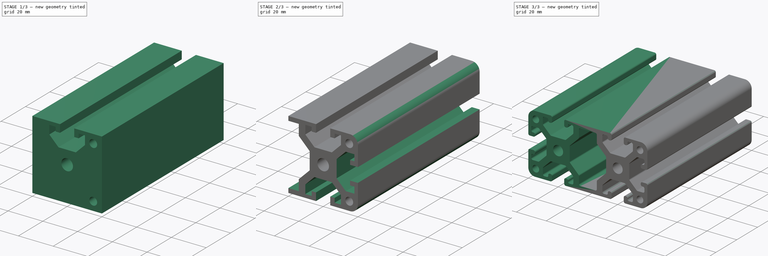
[diagram: build sequence overview — one tinted view per stage of 3, left to right]
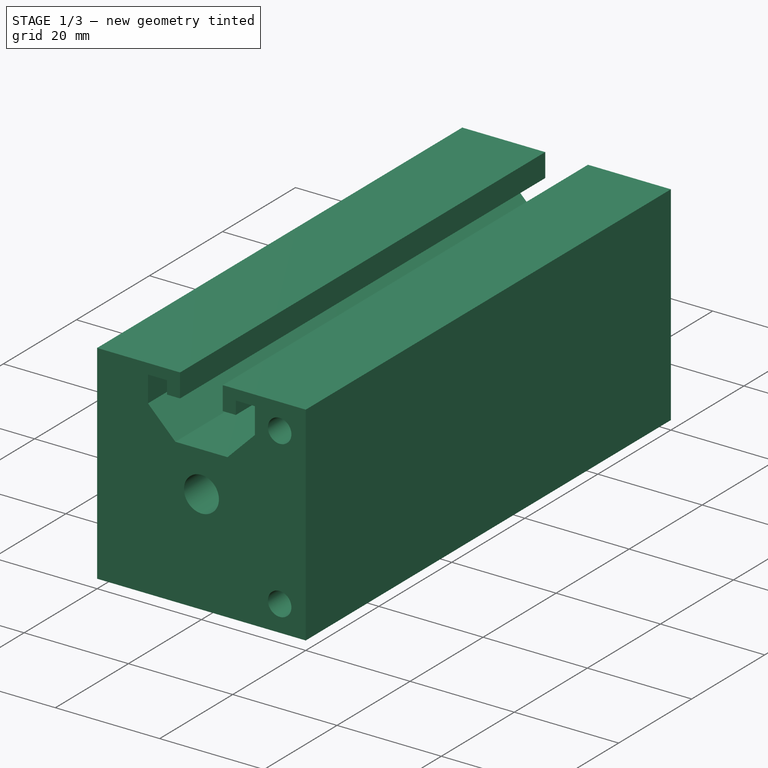
[diagram: stage 1 of 3 — iso view after this stage's code; geometry added in this stage tinted green]
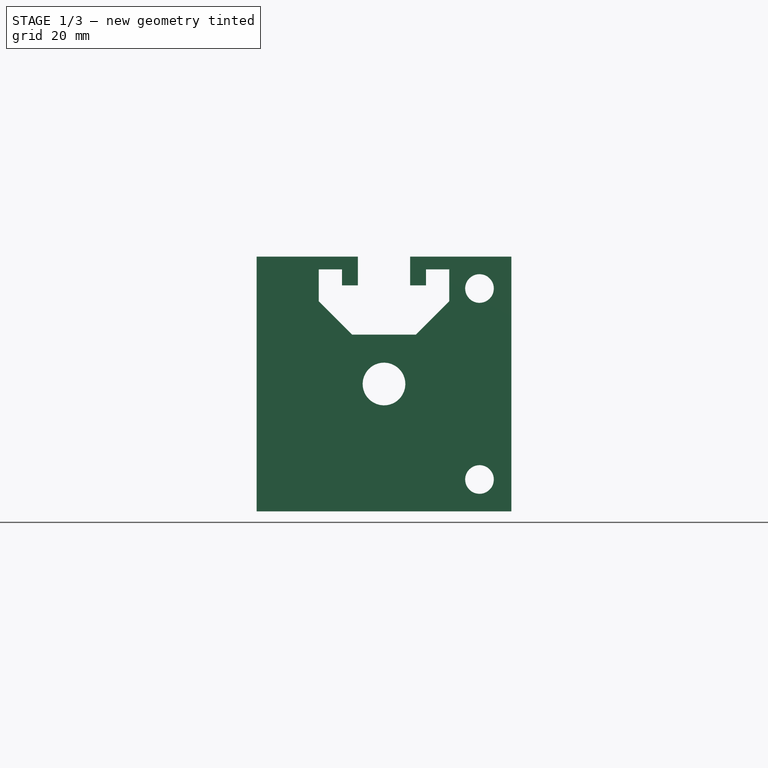
[diagram: stage 1 of 3 — front view after this stage's code; geometry added in this stage tinted green]
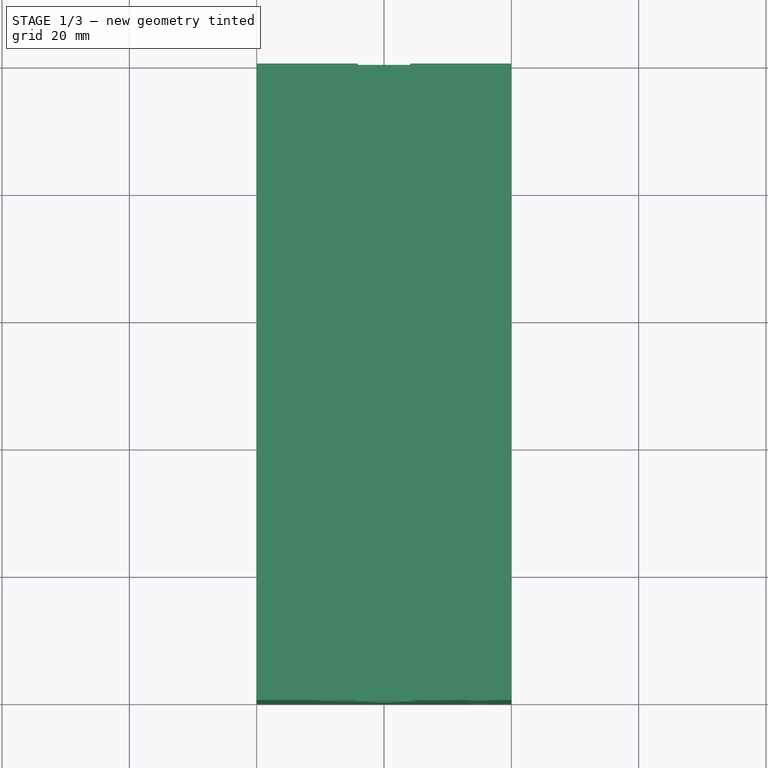
[diagram: stage 1 of 3 — top view after this stage's code; geometry added in this stage tinted green]
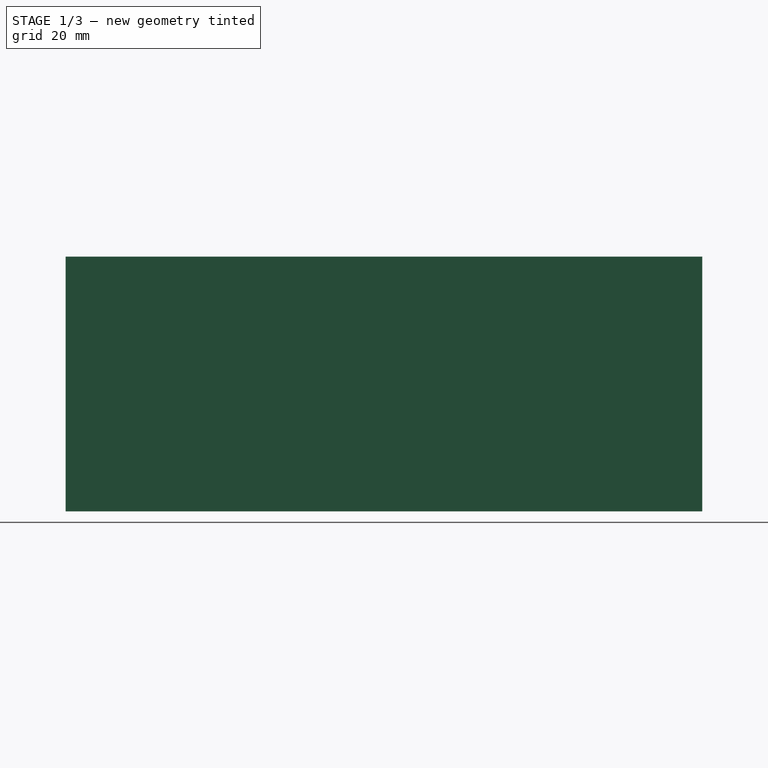
[diagram: stage 1 of 3 — right view after this stage's code; geometry added in this stage tinted green]
FCSTD DOCUMENT  (FreeCAD 1.0R39319 (Git))
Label: AlmProfile-40x80
License: All rights reserved
LicenseURL: https://en.wikipedia.org/wiki/All_rights_reserved
objects: Sketcher::SketchObject×3, PartDesign::Pocket×2, PartDesign::Fillet×2, PartDesign::Pad×1, PartDesign::Line×1, PartDesign::PolarPattern×1, PartDesign::Mirrored×1, PartDesign::Body×1
note: 27 computed .brp shape members not serialized (recipe doc carries the construction recipe); baked Part::Feature solids carry a one-line shape summary decoded from their .brp

FEATURE [Sketcher::SketchObject] Sketch
  ArcFitTolerance = 1e-06
  AttachmentSupport = -> [XZ_Plane]
  FullyConstrained = true
  MakeInternals = false
  MapMode = 5
  Placement = pos=(0,0,0) rot=(1,0,0;1.5708rad)
  sketch-geometry (10):
    g0: LineSegment StartX=0 StartY=-20 StartZ=0 EndX=40 EndY=-20 EndZ=0
    g1: LineSegment StartX=40 StartY=-20 StartZ=0 EndX=40 EndY=20 EndZ=0
    g2: LineSegment StartX=40 StartY=20 StartZ=0 EndX=0 EndY=20 EndZ=0
    g3: LineSegment [constr] StartX=0 StartY=-15 StartZ=0 EndX=35 EndY=-15 EndZ=0
    g4: LineSegment [constr] StartX=35 StartY=-15 StartZ=0 EndX=35 EndY=15 EndZ=0
    g5: LineSegment [constr] StartX=35 StartY=15 StartZ=0 EndX=0 EndY=15 EndZ=0
    g6: Circle CenterX=35 CenterY=15 CenterZ=0 NormalX=0 NormalY=0 NormalZ=1 AngleXU=0 Radius=2.25
    g7: Circle CenterX=35 CenterY=-15 CenterZ=0 NormalX=0 NormalY=0 NormalZ=1 AngleXU=0 Radius=2.25
    g8: Circle CenterX=20 CenterY=0 CenterZ=0 NormalX=0 NormalY=0 NormalZ=1 AngleXU=0 Radius=3.35
    g9: LineSegment StartX=0 StartY=-20 StartZ=0 EndX=0 EndY=20 EndZ=0
  constraints (27):
    c: Coincident(g0,g1)
    c: Coincident(g1,g2)
    c: Vertical(g1)
    c: Horizontal(g2)
    c: Coincident(g4,g5)
    c: Vertical(g4)
    c: Horizontal(g5)
    c: Coincident(g6,g4)
    c: Coincident(g7,g3)
    c: Equal(g6,g7)
    c: Diameter(g6) = 4.5
    c: Diameter(g8) = 6.7
    c: DistanceY(g4,g4) = 30
    c: DistanceX(g3,g3) = 35
    c: Symmetric(g5,g3,g-1)
    c: Coincident(g4,g3)
    c: Vertical(g2,g5)
    c: Horizontal(g3)
    c: Equal(g2,g1)
    c: Horizontal(g0)
    c: PointOnObject(g0,g-2)
    c: Symmetric(g0,g2,g-1)
    c: PointOnObject(g8,g-1)
    c: DistanceX(g-1,g8) = 20
    c: DistanceX(g0,g0) = 40
    c: Coincident(g9,g0)
    c: Coincident(g9,g2)
FEATURE [PartDesign::Pad] Pad
  Direction = (0,-1,2e-16)
  Length = 100
  Length2 = 10
  Placement = pos=(0,0,0) rot=(1,0,0;1.5708rad)
  Profile = -> Sketch
  ReferenceAxis = -> Sketch [N_Axis]
  Refine = true
  Reversed = true
  Suppressed = false
  Type = 0
FEATURE [Sketcher::SketchObject] Sketch001
  ArcFitTolerance = 1e-06
  AttachmentSupport = -> [Pad]
  ExternalGeometry = -> [Pad]
  FullyConstrained = true
  MakeInternals = false
  MapMode = 5
  Placement = pos=(0,0,0) rot=(1,0,0;1.5708rad)
  sketch-geometry (23):
    g0: LineSegment [constr] StartX=27.75 StartY=7.75 StartZ=0 EndX=27.75 EndY=-7.75 EndZ=0
    g1: LineSegment [constr] StartX=12.25 StartY=-7.75 StartZ=0 EndX=12.25 EndY=7.75 EndZ=0
    g2: LineSegment [constr] StartX=27.75 StartY=7.75 StartZ=0 EndX=12.25 EndY=7.75 EndZ=0
    g3: LineSegment [constr] StartX=27.75 StartY=7.75 StartZ=0 EndX=40 EndY=20 EndZ=0
    g4: LineSegment [constr] StartX=12.25 StartY=7.75 StartZ=0 EndX=0 EndY=20 EndZ=0
    g5: LineSegment [constr] StartX=0 StartY=-20 StartZ=0 EndX=12.25 EndY=-7.75 EndZ=0
    g6: LineSegment [constr] StartX=27.75 StartY=-7.75 StartZ=0 EndX=40 EndY=-20 EndZ=0
    g7: LineSegment [constr] StartX=12.25 StartY=-7.75 StartZ=0 EndX=27.75 EndY=-7.75 EndZ=0
    g8: LineSegment [constr] StartX=20 StartY=0 StartZ=0 EndX=20 EndY=20 EndZ=0
    g9: LineSegment StartX=15.9 StartY=20 StartZ=0 EndX=24.1 EndY=20 EndZ=0
    g10: LineSegment StartX=24.1 StartY=20 StartZ=0 EndX=24.1 EndY=15.5 EndZ=0
    g11: LineSegment StartX=24.1 StartY=15.5 StartZ=0 EndX=26.6 EndY=15.5 EndZ=0
    g12: LineSegment StartX=26.6 StartY=15.5 StartZ=0 EndX=26.6 EndY=18 EndZ=0
    g13: LineSegment StartX=26.6 StartY=18 StartZ=0 EndX=30.25 EndY=18 EndZ=0
    g14: LineSegment StartX=30.25 StartY=18 StartZ=0 EndX=30.25 EndY=13 EndZ=0
    g15: LineSegment StartX=30.25 StartY=13 StartZ=0 EndX=25 EndY=7.75 EndZ=0
    g16: LineSegment StartX=25 StartY=7.75 StartZ=0 EndX=15 EndY=7.75 EndZ=0
    g17: LineSegment StartX=15 StartY=7.75 StartZ=0 EndX=9.75 EndY=13 EndZ=0
    g18: LineSegment StartX=9.75 StartY=13 StartZ=0 EndX=9.75 EndY=18 EndZ=0
    g19: LineSegment StartX=9.75 StartY=18 StartZ=0 EndX=13.4 EndY=18 EndZ=0
    g20: LineSegment StartX=13.4 StartY=18 StartZ=0 EndX=13.4 EndY=15.5 EndZ=0
    g21: LineSegment StartX=13.4 StartY=15.5 StartZ=0 EndX=15.9 EndY=15.5 EndZ=0
    g22: LineSegment StartX=15.9 StartY=15.5 StartZ=0 EndX=15.9 EndY=20 EndZ=0
  constraints (61):
    c: Vertical(g0)
    c: Vertical(g1)
    c: Coincident(g2,g0)
    c: Coincident(g2,g1)
    c: Horizontal(g2)
    c: Coincident(g3,g0)
    c: Coincident(g3,g-5)
    c: Coincident(g4,g1)
    c: Coincident(g4,g-5)
    c: Coincident(g5,g-6)
    c: Coincident(g6,g-6)
    c: DistanceX(g2,g2) = 15.5
    c: Coincident(g7,g1)
    c: Coincident(g7,g0)
    c: Horizontal(g7)
    c: Coincident(g5,g1)
    c: Coincident(g6,g0)
    c: Equal(g0,g2)
    c: Coincident(g8,g-3)
    c: Symmetric(g-5,g-5,g8)
    c: Horizontal(g9)
    c: Coincident(g9,g10)
    c: Vertical(g10)
    c: Coincident(g10,g11)
    c: Horizontal(g11)
    c: Coincident(g11,g12)
    c: Vertical(g12)
    c: Coincident(g12,g13)
    c: Horizontal(g13)
    c: Coincident(g13,g14)
    c: Coincident(g14,g15)
    c: PointOnObject(g15,g2)
    c: Coincident(g15,g16)
    c: Coincident(g16,g17)
    c: Coincident(g17,g18)
    c: Vertical(g18)
    c: Coincident(g18,g19)
    c: Coincident(g19,g20)
    c: Coincident(g20,g21)
    c: Horizontal(g21)
    c: Coincident(g21,g22)
    c: Coincident(g22,g9)
    c: Vertical(g22)
    c: Vertical(g20)
    c: Vertical(g14)
    c: Horizontal(g19)
    c: Symmetric(g9,g9,g8)
    c: Horizontal(g10,g21)
    c: Horizontal(g12,g19)
    c: Equal(g21,g11)
    c: DistanceX(g9,g9) = 8.2
    c: DistanceX(g18,g13) = 20.5
    c: Parallel(g15,g3)
    c: Parallel(g17,g4)
    c: Symmetric(g16,g15,g8)
    c: DistanceX(g16,g16) = 10
    c: Symmetric(g0,g1,g8)
    c: Equal(g19,g13)
    c: DistanceX(g21,g21) = 2.5
    c: DistanceY(g20,g20) = 2.5
    c: DistanceY(g22,g22) = 4.5
FEATURE [PartDesign::Pocket] Pocket
  BaseFeature = -> Pad
  Direction = (0,1,-2e-16)
  Length = 5
  Length2 = 5
  Placement = pos=(0,0,0) rot=(1,0,0;1.5708rad)
  Profile = -> Sketch001
  ReferenceAxis = -> Sketch001 [N_Axis]
  Refine = true
  Suppressed = false
  Type = 1
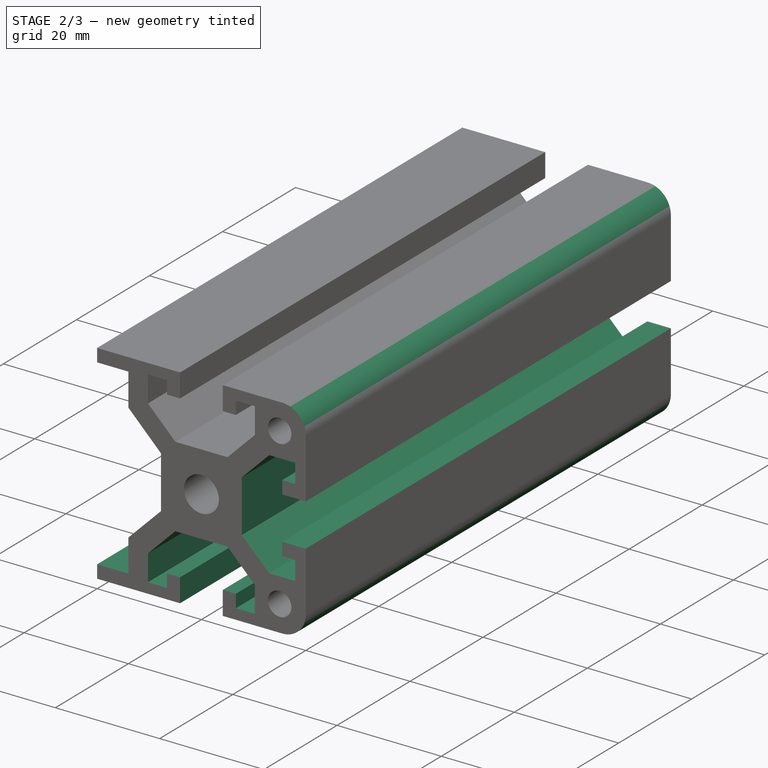
[diagram: stage 2 of 3 — iso view after this stage's code; geometry added in this stage tinted green]
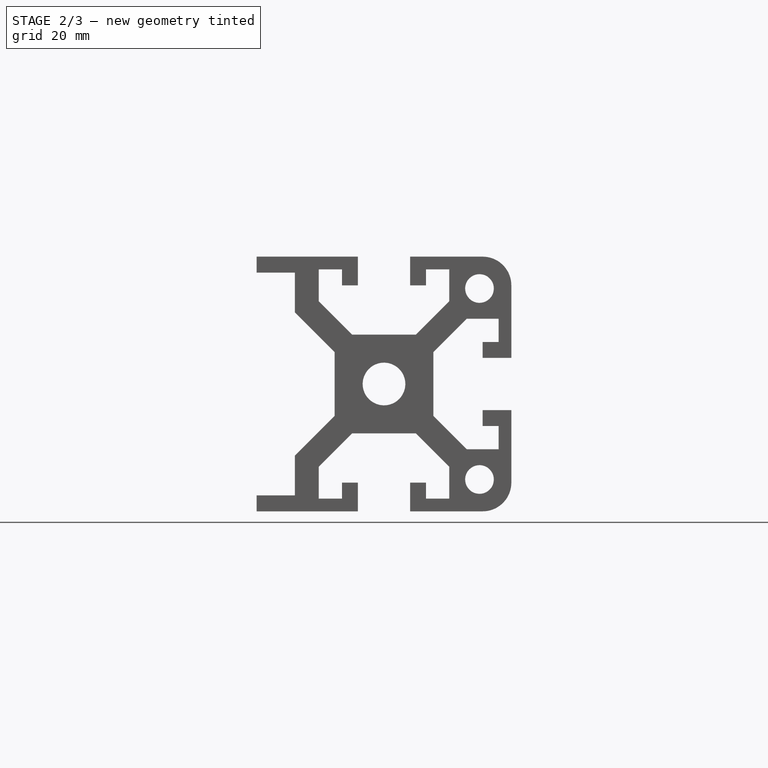
[diagram: stage 2 of 3 — front view after this stage's code; geometry added in this stage tinted green]
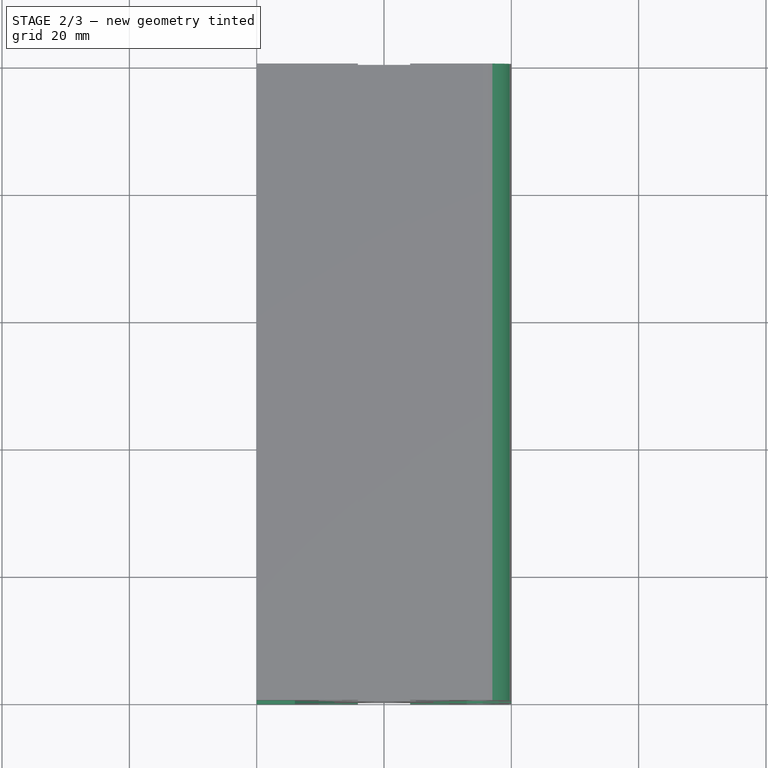
[diagram: stage 2 of 3 — top view after this stage's code; geometry added in this stage tinted green]
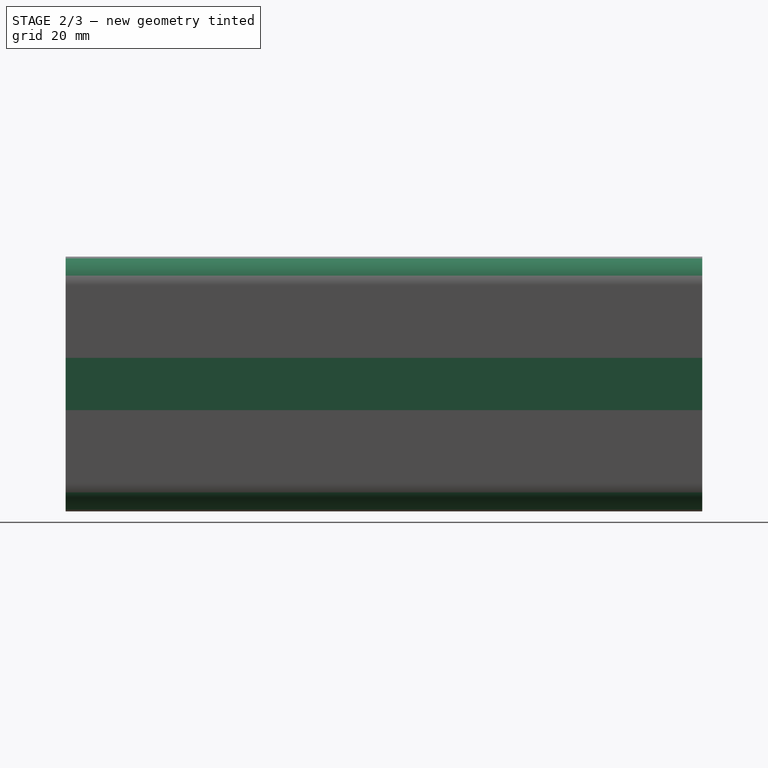
[diagram: stage 2 of 3 — right view after this stage's code; geometry added in this stage tinted green]
FEATURE [PartDesign::Line] DatumLine
  AttacherType = Attacher::AttachEngineLine
  AttachmentOffset = pos=(20,0,0) rot=(0,0,1;0rad)
  AttachmentSupport = -> [Pocket]
  Length = 20
  MapMode = 18
  Placement = pos=(20,0,0) rot=(1,0,0;1.5708rad)
  ResizeMode = 0
FEATURE [PartDesign::PolarPattern] PolarPattern
  Angle = 360
  Axis = -> DatumLine
  BaseFeature = -> Pocket
  Mode = 0
  Occurrences = 4
  Offset = 120
  Originals = -> [Pocket]
  Placement = pos=(0,0,0) rot=(1,0,0;1.5708rad)
  Refine = true
  Suppressed = false
  TransformMode = 0
FEATURE [Sketcher::SketchObject] Sketch002
  ArcFitTolerance = 1e-06
  AttachmentSupport = -> [PolarPattern]
  ExternalGeometry = -> [PolarPattern]
  FullyConstrained = true
  MakeInternals = false
  MapMode = 5
  Placement = pos=(0,0,0) rot=(1,0,0;1.5708rad)
  sketch-geometry (10):
    g0: LineSegment StartX=6 StartY=11.25 StartZ=0 EndX=12.25 EndY=5 EndZ=0
    g1: LineSegment StartX=12.25 StartY=5 StartZ=0 EndX=12.25 EndY=-5 EndZ=0
    g2: LineSegment StartX=12.25 StartY=-5 StartZ=0 EndX=6 EndY=-11.25 EndZ=0
    g3: LineSegment StartX=0 StartY=-17.5 StartZ=0 EndX=0 EndY=17.5 EndZ=0
    g4: LineSegment [constr] StartX=0 StartY=20 StartZ=0 EndX=20 EndY=0 EndZ=0
    g5: LineSegment [constr] StartX=20 StartY=0 StartZ=0 EndX=0 EndY=-20 EndZ=0
    g6: LineSegment StartX=6 StartY=11.25 StartZ=0 EndX=6 EndY=17.5 EndZ=0
    g7: LineSegment StartX=6 StartY=17.5 StartZ=0 EndX=0 EndY=17.5 EndZ=0
    g8: LineSegment StartX=6 StartY=-11.25 StartZ=0 EndX=6 EndY=-17.5 EndZ=0
    g9: LineSegment StartX=6 StartY=-17.5 StartZ=0 EndX=0 EndY=-17.5 EndZ=0
  constraints (25):
    c: Coincident(g0,g1)
    c: Coincident(g1,g2)
    c: Coincident(g4,g-4)
    c: Coincident(g4,g-3)
    c: Parallel(g0,g4)
    c: Coincident(g5,g4)
    c: Coincident(g5,g-5)
    c: Parallel(g5,g2)
    c: Symmetric(g1,g0,g-1)
    c: Symmetric(g3,g3,g-1)
    c: PointOnObject(g3,g-2)
    c: Coincident(g0,g-6)
    c: Coincident(g0,g6)
    c: Vertical(g6)
    c: Coincident(g6,g7)
    c: Coincident(g7,g3)
    c: Coincident(g2,g8)
    c: Vertical(g8)
    c: Coincident(g8,g9)
    c: Coincident(g9,g3)
    c: Horizontal(g7)
    c: Horizontal(g9)
    c: DistanceY(g3,g4) = 2.5
    c: DistanceX(g7,g7) = 6
    c: Equal(g8,g6)
FEATURE [PartDesign::Pocket] Pocket001
  BaseFeature = -> PolarPattern
  Direction = (0,1,-2e-16)
  Length = 5
  Length2 = 5
  Placement = pos=(0,0,0) rot=(1,0,0;1.5708rad)
  Profile = -> Sketch002
  ReferenceAxis = -> Sketch002 [N_Axis]
  Refine = true
  Suppressed = false
  Type = 1
FEATURE [PartDesign::Fillet] Fillet
  Base = -> Pocket001 [Edge146,Edge131]
  BaseFeature = -> Pocket001
  Placement = pos=(0,0,0) rot=(1,0,0;1.5708rad)
  Radius = 4.5
  Refine = true
  SupportTransform = false
  Suppressed = false
  UseAllEdges = false
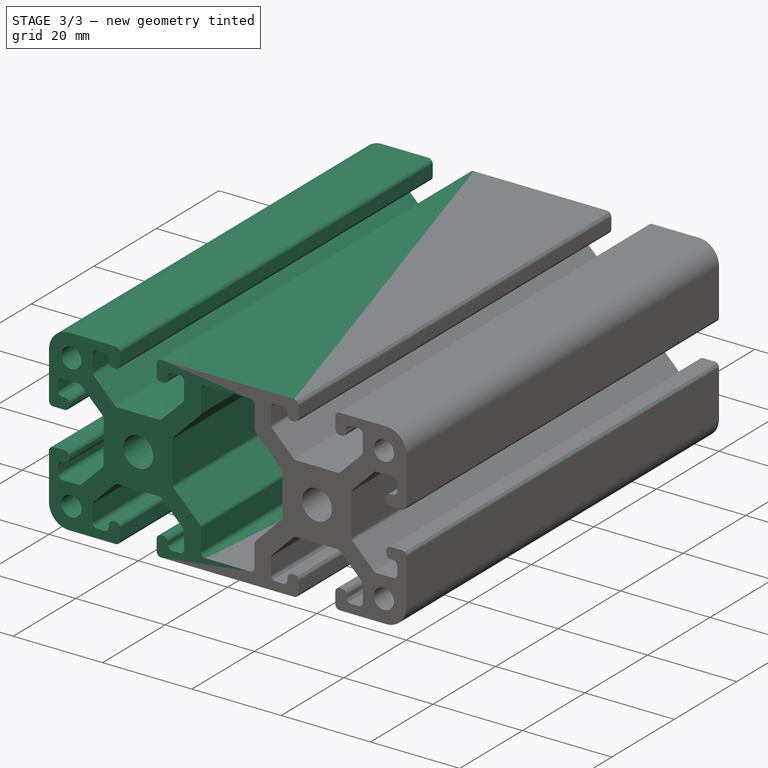
[diagram: stage 3 of 3 — iso view after this stage's code; geometry added in this stage tinted green]
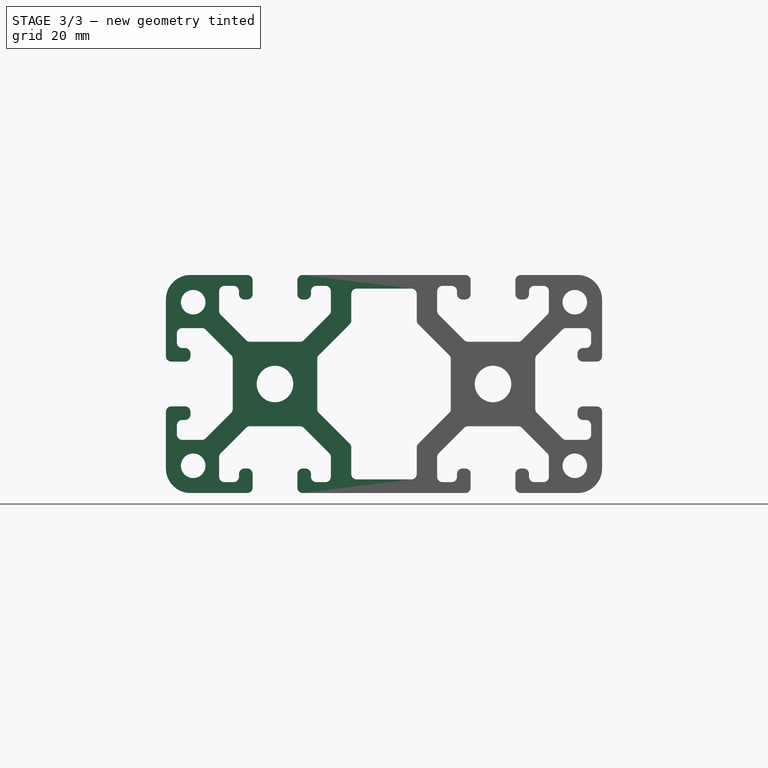
[diagram: stage 3 of 3 — front view after this stage's code; geometry added in this stage tinted green]
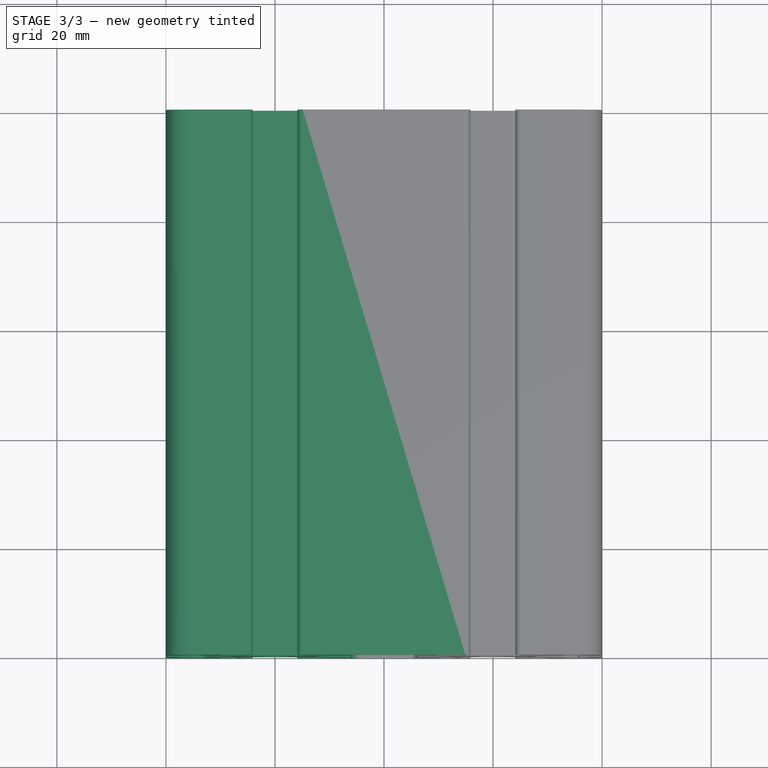
[diagram: stage 3 of 3 — top view after this stage's code; geometry added in this stage tinted green]
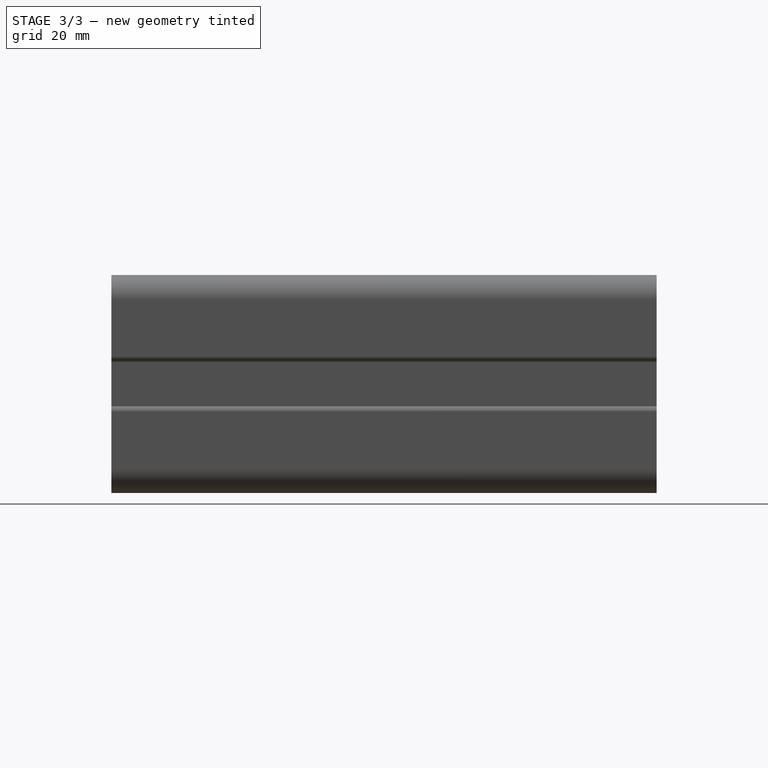
[diagram: stage 3 of 3 — right view after this stage's code; geometry added in this stage tinted green]
FEATURE [PartDesign::Fillet] Fillet001
  Base = -> Fillet [Edge158,Edge170,Edge162,Edge166,Edge167,Edge163,Edge159,Edge131,Edge143,Edge139,Edge135,Edge147,Edge151,Edge155,Edge99,Edge95,Edge103,Edge107,Edge119,Edge111,Edge115,Edge67,Edge71,Edge75,Edge79,Edge83,Edge87,Edge91,Edge86,Edge82,Edge70,Edge66,Edge74,Edge78,Edge61,Edge110,Edge106,Edge102,Edge114,Edge98,+8 more]
  BaseFeature = -> Fillet
  Placement = pos=(0,0,0) rot=(1,0,0;1.5708rad)
  Radius = 1
  Refine = true
  SupportTransform = false
  Suppressed = false
  UseAllEdges = false
FEATURE [PartDesign::Mirrored] Mirrored
  BaseFeature = -> Fillet001
  MirrorPlane = -> YZ_Plane
  Placement = pos=(0,0,0) rot=(1,0,0;1.5708rad)
  Refine = true
  Suppressed = false
  TransformMode = 1
FEATURE [PartDesign::Body] Body
  AllowCompound = false
  Group = -> [Sketch,Pad,Sketch001,Pocket,DatumLine,PolarPattern,Sketch002,Pocket001,Fillet,Fillet001,Mirrored]
  Origin = -> Origin
  Tip = -> Mirrored
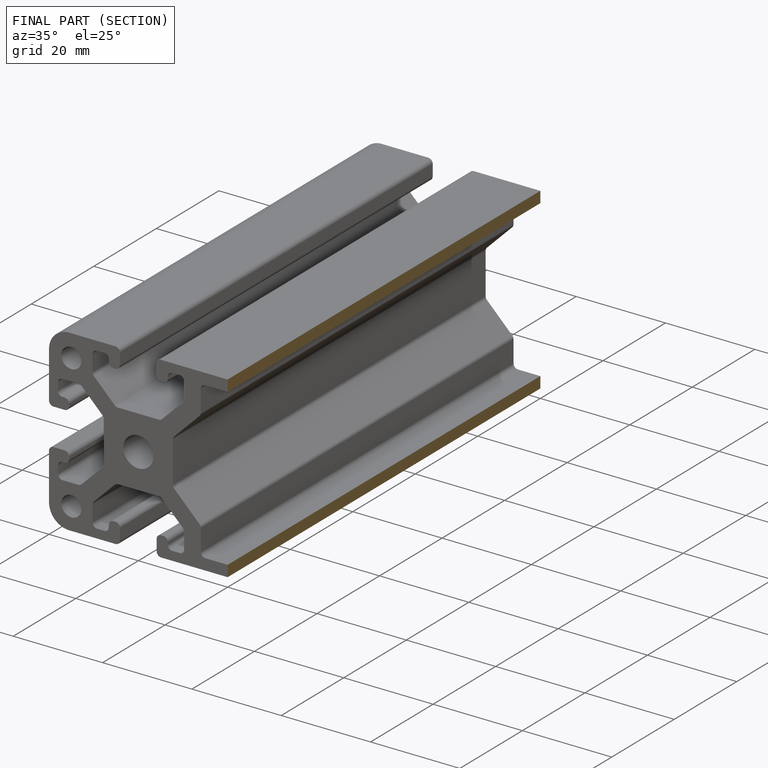
[diagram: finished part — half-section view (interior)]
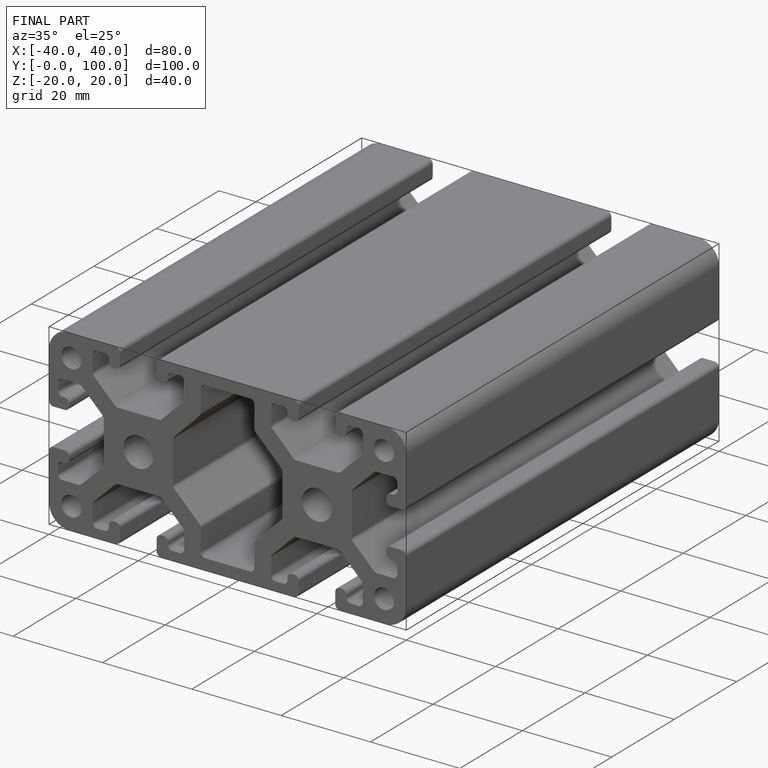
[diagram: finished part — iso view with bounding-box wireframe]
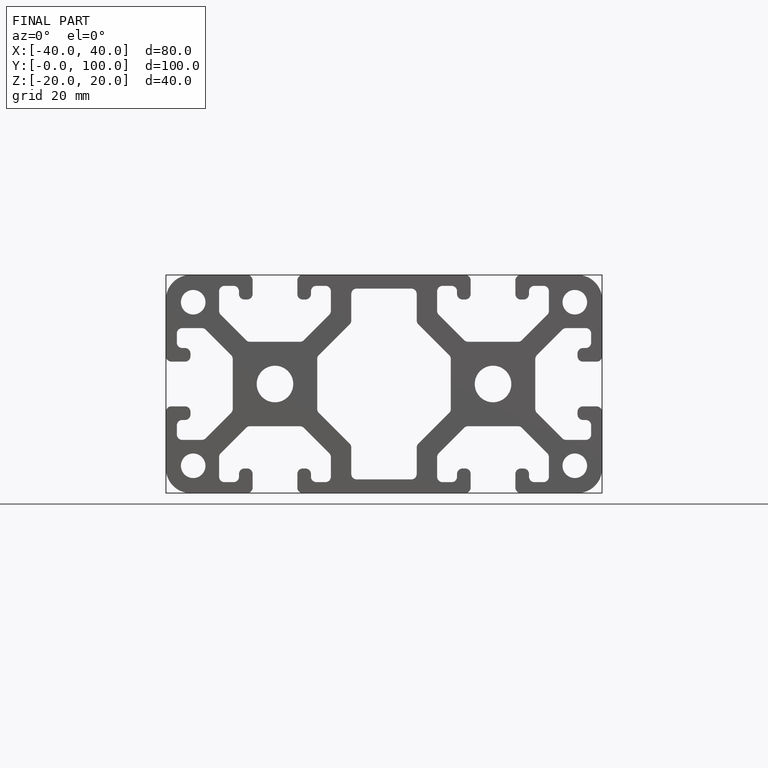
[diagram: finished part — front view with bounding-box wireframe]
